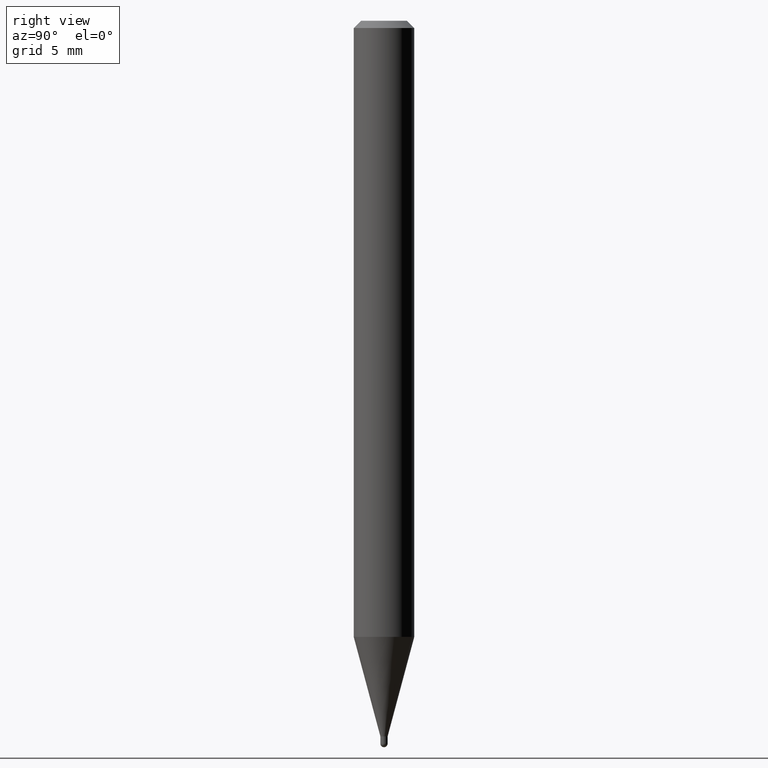
[diagram: clean part render]
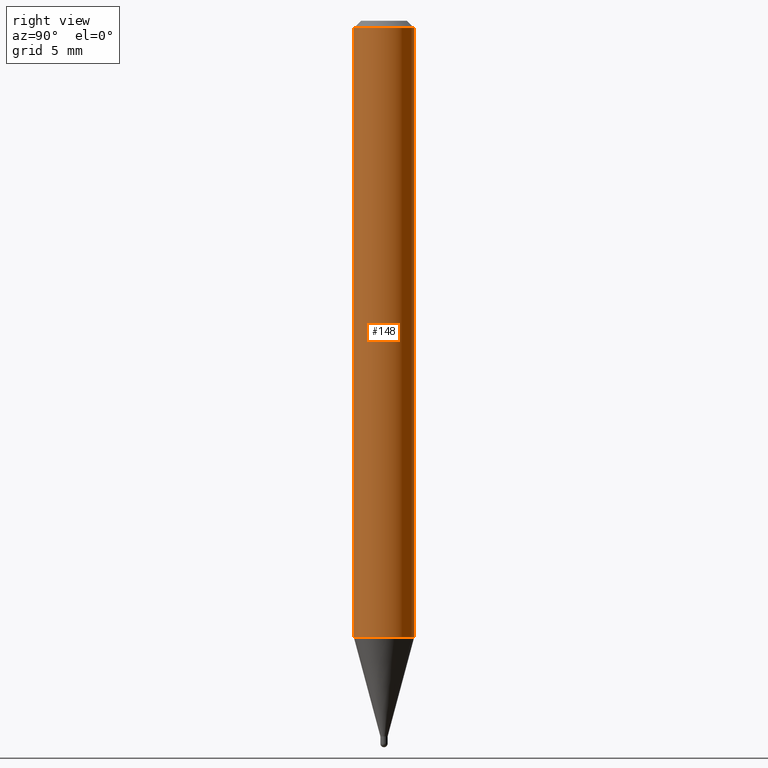
[diagram: same view with one face highlighted and labeled with its STEP entity id]
A machine part, right view. The second image highlights one B-rep face of the part: STEP entity #148.
In plain terms, the highlighted cylindrical surface (edge-blend (fillet) strip) has radius 1.5875 mm, axis along (-0, 0, 1).
Its self-contained STEP definition (entity closure, byte-faithful):
#5 = LINE ( 'NONE', #482, #225 ) ;
#21 = ORIENTED_EDGE ( 'NONE', *, *, #465, .F. ) ;
#29 = VERTEX_POINT ( 'NONE', #418 ) ;
#52 = CARTESIAN_POINT ( 'NONE',  ( 4.440892098500625669E-16, 0.06250000000000000000, -2.182170555710875562E-16 ) ) ;
#81 = VECTOR ( 'NONE', #448, 39.37007874015748143 ) ;
#84 = VERTEX_POINT ( 'NONE', #461 ) ;
#96 = CARTESIAN_POINT ( 'NONE',  ( 4.440892098500938748E-16, 0.06249999999999995143, -0.01500000000000028394 ) ) ;
#102 = DIRECTION ( 'NONE',  ( -6.982962677686265922E-15, -1.000000000000000000, 3.483106191921935554E-15 ) ) ;
#148 = ADVANCED_FACE ( 'NONE', ( #314 ), #504, .T. ) ;
#159 = CARTESIAN_POINT ( 'NONE',  ( 0.000000000000000000, 0.000000000000000000, 0.000000000000000000 ) ) ;
#188 = AXIS2_PLACEMENT_3D ( 'NONE', #421, #381, #423 ) ;
#202 = AXIS2_PLACEMENT_3D ( 'NONE', #159, #308, #480 ) ;
#207 = VERTEX_POINT ( 'NONE', #438 ) ;
#225 = VECTOR ( 'NONE', #281, 39.37007874015748143 ) ;
#242 = CIRCLE ( 'NONE', #414, 0.06250000000000000000 ) ;
#245 = EDGE_LOOP ( 'NONE', ( #509, #383, #21, #365 ) ) ;
#281 = DIRECTION ( 'NONE',  ( -2.445474706583121780E-29, 3.491472889137400899E-15, 1.000000000000000000 ) ) ;
#306 = EDGE_CURVE ( 'NONE', #29, #84, #5, .T. ) ;
#308 = DIRECTION ( 'NONE',  ( -2.445474706583121780E-29, 3.491472889137400899E-15, 1.000000000000000000 ) ) ;
#314 = FACE_OUTER_BOUND ( 'NONE', #245, .T. ) ;
#324 = LINE ( 'NONE', #52, #81 ) ;
#336 = CIRCLE ( 'NONE', #188, 0.06250000000000000000 ) ;
#342 = EDGE_CURVE ( 'NONE', #207, #355, #324, .T. ) ;
#355 = VERTEX_POINT ( 'NONE', #96 ) ;
#365 = ORIENTED_EDGE ( 'NONE', *, *, #306, .F. ) ;
#381 = DIRECTION ( 'NONE',  ( -2.445474706583121780E-29, 3.491472889137400899E-15, 1.000000000000000000 ) ) ;
#383 = ORIENTED_EDGE ( 'NONE', *, *, #342, .T. ) ;
#414 = AXIS2_PLACEMENT_3D ( 'NONE', #456, #416, #102 ) ;
#416 = DIRECTION ( 'NONE',  ( -2.445474706583121780E-29, 3.491472889137400899E-15, 1.000000000000000000 ) ) ;
#418 = CARTESIAN_POINT ( 'NONE',  ( -4.364351673553606080E-16, -0.06250000000000444089, -1.272237205583719888 ) ) ;
#421 = CARTESIAN_POINT ( 'NONE',  ( 3.111223907028978359E-29, -4.441981711847484766E-15, -1.272237205583720110 ) ) ;
#423 = DIRECTION ( 'NONE',  ( -6.982962677686265922E-15, -1.000000000000000000, 4.370956789862821150E-15 ) ) ;
#438 = CARTESIAN_POINT ( 'NONE',  ( 4.440892098500935790E-16, 0.06249999999999555911, -1.272237205583720332 ) ) ;
#448 = DIRECTION ( 'NONE',  ( -2.445474706583121780E-29, 3.491472889137400899E-15, 1.000000000000000000 ) ) ;
#456 = CARTESIAN_POINT ( 'NONE',  ( 3.668212059874699521E-31, -5.237209333706124349E-17, -0.01500000000000006710 ) ) ;
#461 = CARTESIAN_POINT ( 'NONE',  ( -4.364351673553912750E-16, -0.06250000000000005551, -0.01499999999999984852 ) ) ;
#465 = EDGE_CURVE ( 'NONE', #84, #355, #242, .T. ) ;
#480 = DIRECTION ( 'NONE',  ( -6.982962677686265922E-15, -1.000000000000000000, 3.491472889137400899E-15 ) ) ;
#482 = CARTESIAN_POINT ( 'NONE',  ( -4.364351673553916201E-16, -0.06250000000000000000, 2.182170555710875562E-16 ) ) ;
#504 = CYLINDRICAL_SURFACE ( 'NONE', #202, 0.06250000000000000000 ) ;
#506 = EDGE_CURVE ( 'NONE', #29, #207, #336, .T. ) ;
#509 = ORIENTED_EDGE ( 'NONE', *, *, #506, .T. ) ;